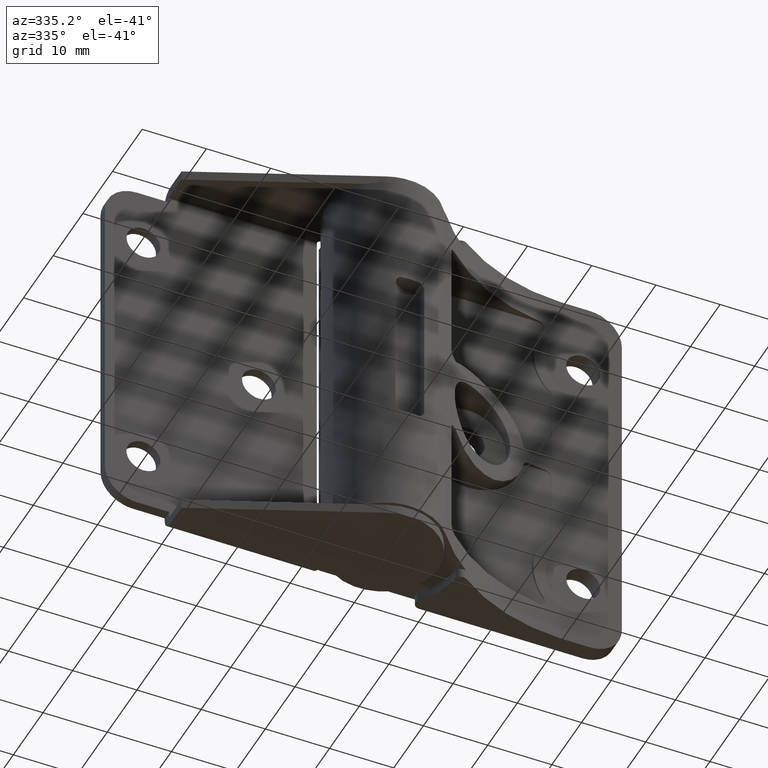
[diagram: clean part render]
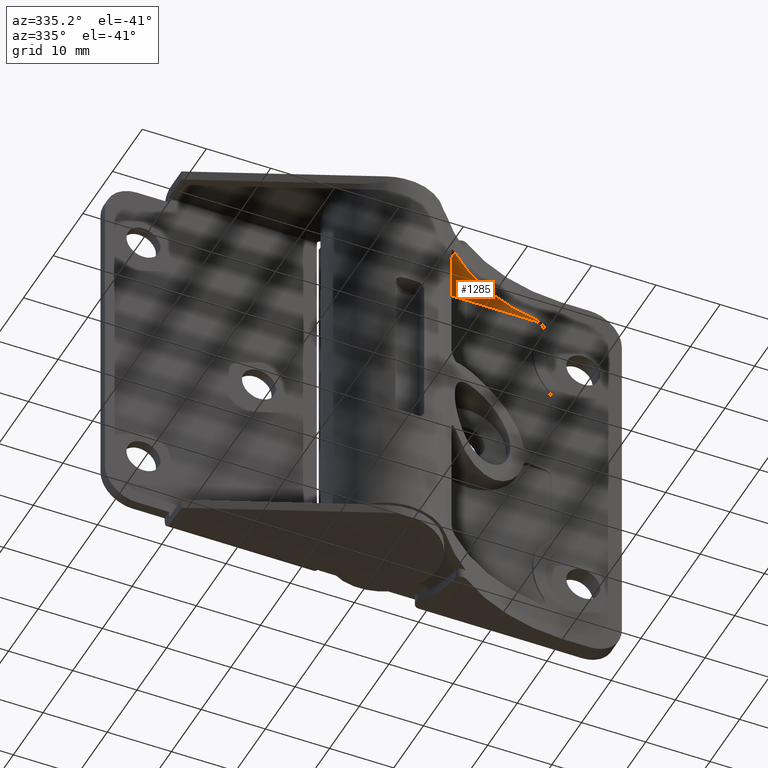
[diagram: same view with one face highlighted and labeled with its STEP entity id]
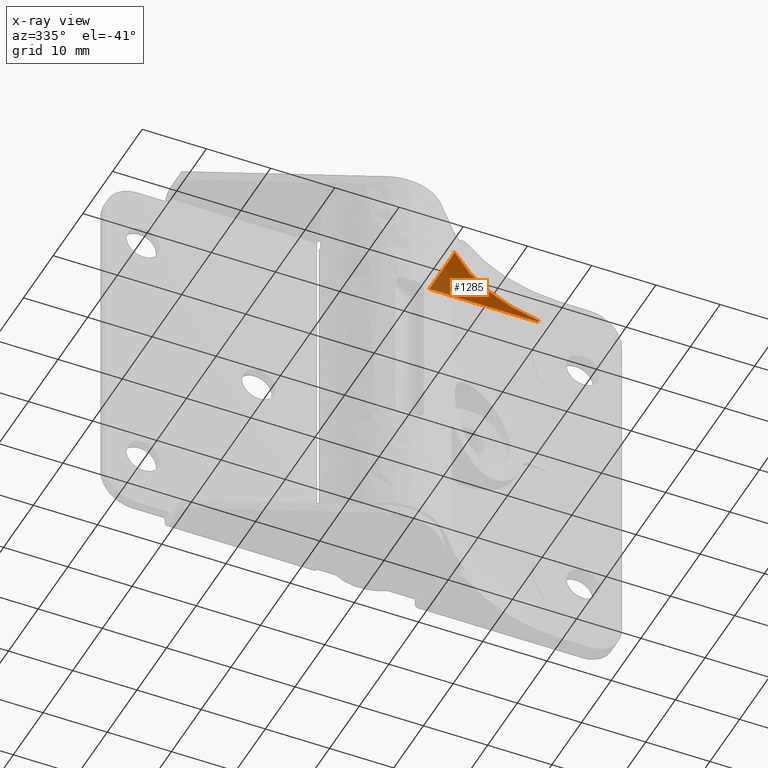
[diagram: x-ray of the same camera — body ghosted, the highlighted face saturated]
A machine part, auxiliary view. The second image highlights one B-rep face of the part: STEP entity #1285.
The next image is the same camera in x-ray: the body ghosted, the highlighted face saturated — about 18% of this face is hidden behind the body in this view.
In plain terms, the highlighted face is a freeform B-spline surface patch.
Its self-contained STEP definition (entity closure, byte-faithful):
#1093=CARTESIAN_POINT('',(10.000000000000201,6.400002000000000,58.0));
#1094=VERTEX_POINT('',#1093);
#1225=CARTESIAN_POINT('',(26.876098947640351,6.400002000000000,58.0));
#1226=VERTEX_POINT('',#1225);
#1242=CARTESIAN_POINT('',(26.876098947640351,6.400002000000000,58.0));
#1243=CARTESIAN_POINT('',(10.000000000000201,6.400002000000000,58.0));
#1244=QUASI_UNIFORM_CURVE('',1,(#1242,#1243),.UNSPECIFIED.,.F.,.U.);
#1245=EDGE_CURVE('',#1226,#1094,#1244,.T.);
#1250=CARTESIAN_POINT('',(27.719059740524340,-2.652830828411775,58.0));
#1251=CARTESIAN_POINT('',(9.157038452695801,-2.652830828411775,58.0));
#1252=CARTESIAN_POINT('',(27.719059740524340,6.830678914027958,58.0));
#1253=CARTESIAN_POINT('',(9.157038452695801,6.830678914027958,58.0));
#1254=B_SPLINE_SURFACE_WITH_KNOTS('',1,1,((#1250,#1252),(#1251,#1253)),.UNSPECIFIED.,.F.,.F.,.U.,(2,2),(2,2),(0.0,18.562021287828539),(0.0,9.483509742439733),.UNSPECIFIED.);
#1255=CARTESIAN_POINT('',(26.876098947640351,6.114380155674080,58.0));
#1256=VERTEX_POINT('',#1255);
#1257=CARTESIAN_POINT('',(10.000000000000201,-2.222154145648065,58.0));
#1258=VERTEX_POINT('',#1257);
#1259=CARTESIAN_POINT('',(26.876098947640351,6.114380155674101,58.0));
#1260=CARTESIAN_POINT('',(17.060880317210128,4.733991290466151,58.0));
#1261=CARTESIAN_POINT('',(10.000000000000210,-2.222154145648050,58.0));
#1269=(BOUNDED_CURVE()B_SPLINE_CURVE(2,(#1259,#1260,#1261),.UNSPECIFIED.,.F.,.U.)CURVE()GEOMETRIC_REPRESENTATION_ITEM()QUASI_UNIFORM_CURVE()RATIONAL_B_SPLINE_CURVE((1.0,0.949517345250315,1.0))REPRESENTATION_ITEM(''));
#1270=EDGE_CURVE('',#1256,#1258,#1269,.T.);
#1271=ORIENTED_EDGE('',*,*,#1270,.T.);
#1272=CARTESIAN_POINT('',(10.000000000000201,-2.222154145648065,58.0));
#1273=CARTESIAN_POINT('',(10.000000000000201,6.400002000000000,58.0));
#1274=QUASI_UNIFORM_CURVE('',1,(#1272,#1273),.UNSPECIFIED.,.F.,.U.);
#1275=EDGE_CURVE('',#1258,#1094,#1274,.T.);
#1276=ORIENTED_EDGE('',*,*,#1275,.T.);
#1277=ORIENTED_EDGE('',*,*,#1245,.F.);
#1278=CARTESIAN_POINT('',(26.876098947640351,6.114380155674080,58.0));
#1279=CARTESIAN_POINT('',(26.876098947640351,6.400002000000000,58.0));
#1280=QUASI_UNIFORM_CURVE('',1,(#1278,#1279),.UNSPECIFIED.,.F.,.U.);
#1281=EDGE_CURVE('',#1256,#1226,#1280,.T.);
#1282=ORIENTED_EDGE('',*,*,#1281,.F.);
#1283=EDGE_LOOP('',(#1271,#1276,#1277,#1282));
#1284=FACE_OUTER_BOUND('',#1283,.T.);
#1285=ADVANCED_FACE('',(#1284),#1254,.T.);